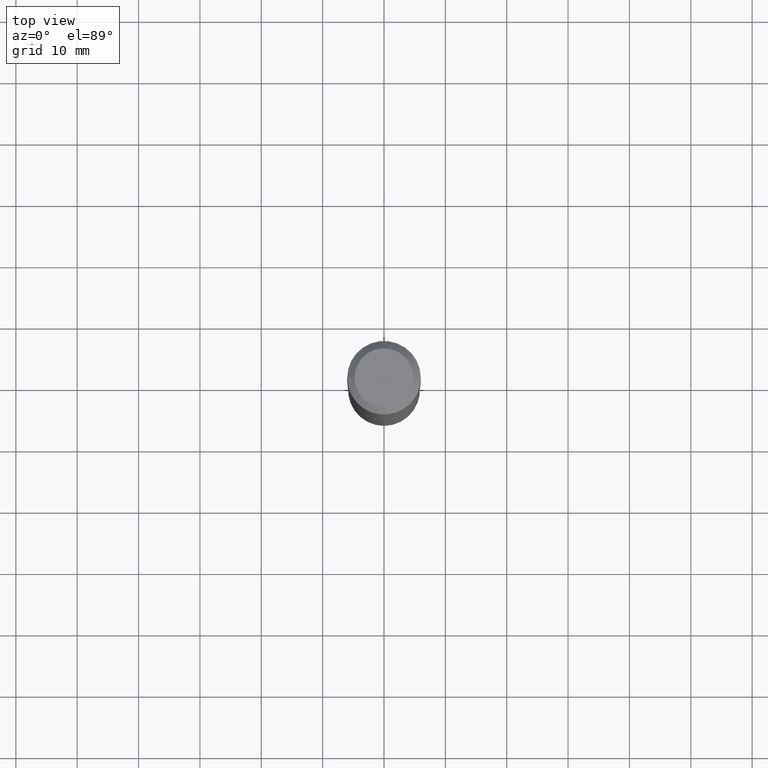
[diagram: clean part render]
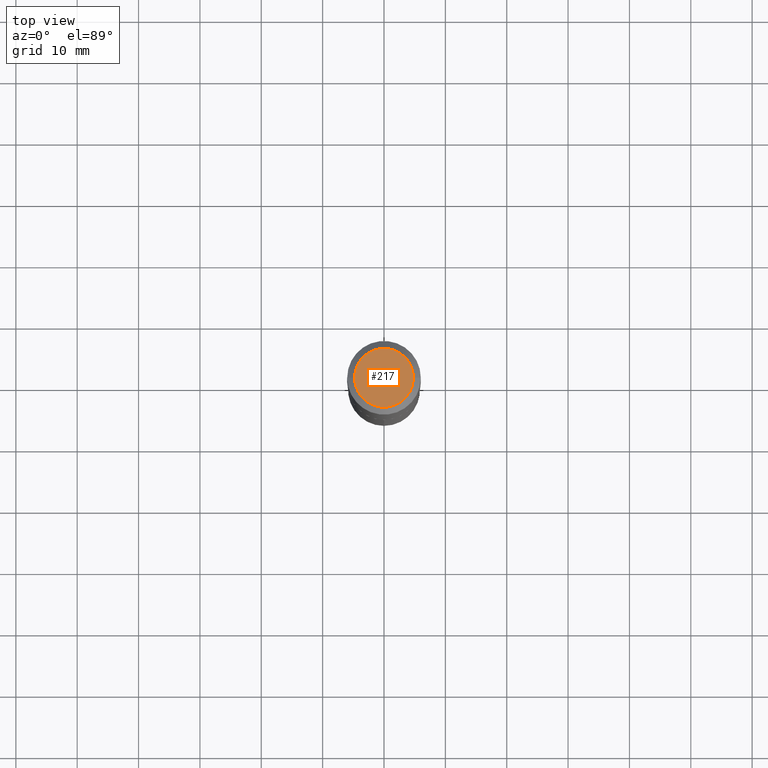
[diagram: same view with one face highlighted and labeled with its STEP entity id]
A machine part, top view. The second image highlights one B-rep face of the part: STEP entity #217.
In plain terms, the highlighted planar face has unit normal (0, -0, -1).
Its self-contained STEP definition (entity closure, byte-faithful):
#32 = ORIENTED_EDGE ( 'NONE', *, *, #53, .T. ) ;
#53 = EDGE_CURVE ( 'NONE', #407, #79, #157, .T. ) ;
#54 = CARTESIAN_POINT ( 'NONE',  ( 0.1889600000000000168, -1.540873453589747738E-15, 3.855188123725863225E-18 ) ) ;
#79 = VERTEX_POINT ( 'NONE', #54 ) ;
#80 = DIRECTION ( 'NONE',  ( -2.445468806185136597E-29, 3.491481338843145583E-15, 1.000000000000000000 ) ) ;
#99 = DIRECTION ( 'NONE',  ( -2.445468806185136597E-29, 3.491481338843145583E-15, 1.000000000000000000 ) ) ;
#138 = AXIS2_PLACEMENT_3D ( 'NONE', #210, #80, #199 ) ;
#147 = CARTESIAN_POINT ( 'NONE',  ( -9.427742298522546243E-47, 1.346031739168365344E-32, 3.855188123715862256E-18 ) ) ;
#157 = CIRCLE ( 'NONE', #138, 0.1889600000000000168 ) ;
#173 = DIRECTION ( 'NONE',  ( -1.000000000000000000, 6.982962677686265922E-15, -4.876176775795935793E-29 ) ) ;
#199 = DIRECTION ( 'NONE',  ( 1.000000000000000000, -6.982962677686266711E-15, 4.876185090822587894E-29 ) ) ;
#209 = PLANE ( 'NONE',  #263 ) ;
#210 = CARTESIAN_POINT ( 'NONE',  ( -9.427742298522546243E-47, 1.346031739168365344E-32, 3.855188123715862256E-18 ) ) ;
#211 = DIRECTION ( 'NONE',  ( 2.438088387897960049E-29, -3.491481338843145188E-15, -1.000000000000000000 ) ) ;
#217 = ADVANCED_FACE ( 'NONE', ( #249 ), #209, .F. ) ;
#223 = DIRECTION ( 'NONE',  ( 1.000000000000000000, -6.982962677686266711E-15, 4.876185090822587894E-29 ) ) ;
#241 = CIRCLE ( 'NONE', #453, 0.1889600000000000168 ) ;
#249 = FACE_OUTER_BOUND ( 'NONE', #378, .T. ) ;
#263 = AXIS2_PLACEMENT_3D ( 'NONE', #466, #211, #173 ) ;
#345 = ORIENTED_EDGE ( 'NONE', *, *, #371, .T. ) ;
#371 = EDGE_CURVE ( 'NONE', #79, #407, #241, .T. ) ;
#378 = EDGE_LOOP ( 'NONE', ( #32, #345 ) ) ;
#393 = CARTESIAN_POINT ( 'NONE',  ( -0.1889600000000000168, 1.401969416799070942E-15, 3.855188123706346622E-18 ) ) ;
#407 = VERTEX_POINT ( 'NONE', #393 ) ;
#453 = AXIS2_PLACEMENT_3D ( 'NONE', #147, #99, #223 ) ;
#466 = CARTESIAN_POINT ( 'NONE',  ( -4.713871149261273121E-47, 6.730158695841826722E-33, 1.927594061857931128E-18 ) ) ;